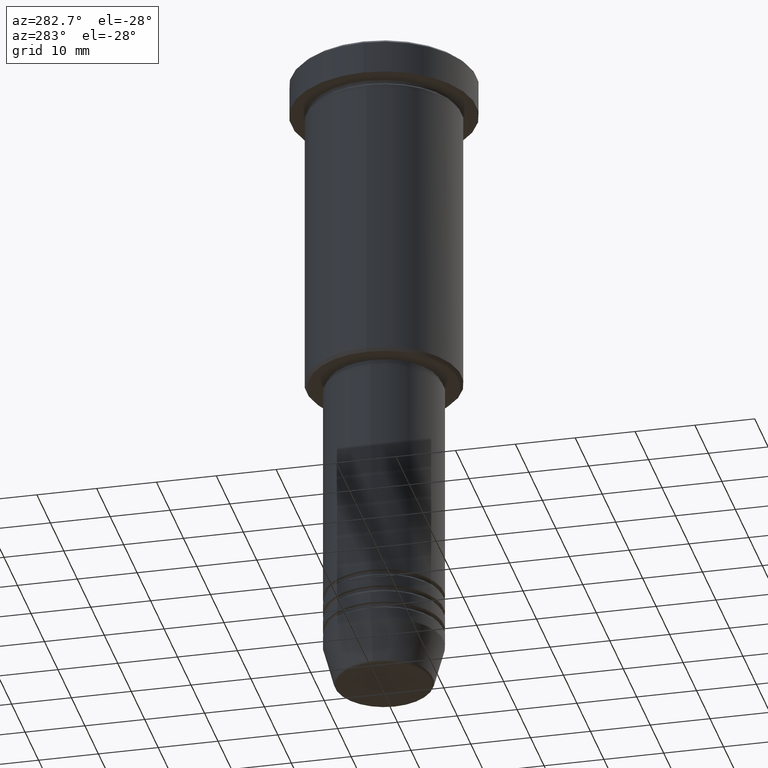
[diagram: clean part render]
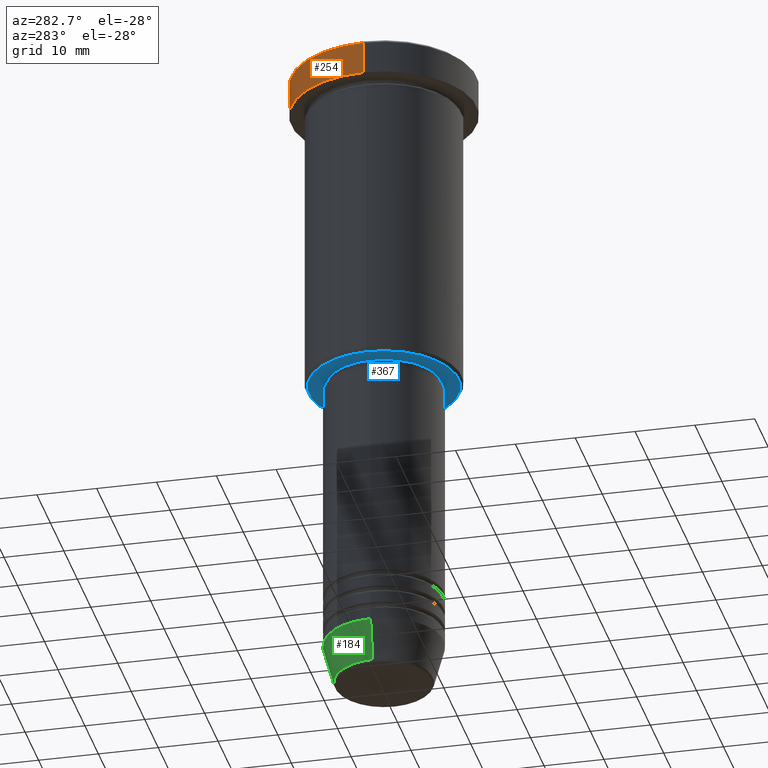
[diagram: same view with three faces highlighted in distinct colors, each labeled with its STEP entity id]
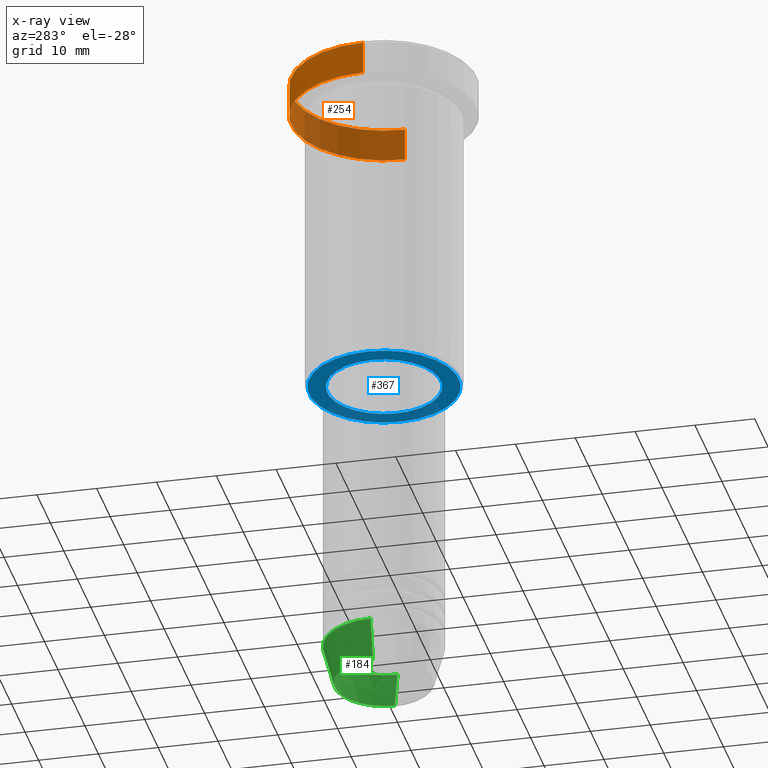
[diagram: x-ray of the same camera — body ghosted, the three highlighted faces saturated]
A machine part, auxiliary view with three faces highlighted in distinct colors.
The next image is the same camera in x-ray (body ghosted, the three faces saturated) — at least one of them is partly hidden behind the body in this view.
Their STEP definitions:

[orange] entity #254 — the highlighted cylindrical surface (partial cylindrical patch) has radius 15.5 mm, axis along (-0, -0, 1).
#17 = EDGE_LOOP ( 'NONE', ( #320, #1050, #904, #565 ) ) ;
#28 = AXIS2_PLACEMENT_3D ( 'NONE', #762, #479, #115 ) ;
#115 = DIRECTION ( 'NONE',  ( 1.000000000000000000, 0.000000000000000000, 0.000000000000000000 ) ) ;
#131 = CARTESIAN_POINT ( 'NONE',  ( 0.000000000000000000, 0.000000000000000000, -5.999999999999995559 ) ) ;
#138 = DIRECTION ( 'NONE',  ( -0.000000000000000000, -0.000000000000000000, 1.000000000000000000 ) ) ;
#197 = CYLINDRICAL_SURFACE ( 'NONE', #28, 15.50000000000000000 ) ;
#251 = CARTESIAN_POINT ( 'NONE',  ( 0.000000000000000000, 0.000000000000000000, -0.5000000000000125455 ) ) ;
#254 = ADVANCED_FACE ( 'NONE', ( #671 ), #197, .T. ) ;
#290 = CARTESIAN_POINT ( 'NONE',  ( 15.50000000000000000, 0.000000000000000000, -0.5000000000000125455 ) ) ;
#304 = LINE ( 'NONE', #1035, #394 ) ;
#320 = ORIENTED_EDGE ( 'NONE', *, *, #326, .T. ) ;
#326 = EDGE_CURVE ( 'NONE', #1136, #799, #984, .T. ) ;
#365 = CARTESIAN_POINT ( 'NONE',  ( 15.50000000000000000, 0.000000000000000000, -5.999999999999995559 ) ) ;
#394 = VECTOR ( 'NONE', #576, 1000.000000000000000 ) ;
#479 = DIRECTION ( 'NONE',  ( -0.000000000000000000, -0.000000000000000000, 1.000000000000000000 ) ) ;
#491 = CARTESIAN_POINT ( 'NONE',  ( -15.50000000000000000, 1.898202538678397557E-15, -5.999999999999995559 ) ) ;
#497 = CARTESIAN_POINT ( 'NONE',  ( -15.50000000000000000, 1.898202538678397557E-15, -0.5000000000000125455 ) ) ;
#502 = DIRECTION ( 'NONE',  ( 1.000000000000000000, 0.000000000000000000, 0.000000000000000000 ) ) ;
#509 = DIRECTION ( 'NONE',  ( 0.000000000000000000, 0.000000000000000000, -1.000000000000000000 ) ) ;
#540 = VERTEX_POINT ( 'NONE', #290 ) ;
#565 = ORIENTED_EDGE ( 'NONE', *, *, #973, .F. ) ;
#571 = VERTEX_POINT ( 'NONE', #497 ) ;
#576 = DIRECTION ( 'NONE',  ( -0.000000000000000000, -0.000000000000000000, 1.000000000000000000 ) ) ;
#631 = CARTESIAN_POINT ( 'NONE',  ( 15.50000000000000000, 0.000000000000000000, 0.000000000000000000 ) ) ;
#644 = AXIS2_PLACEMENT_3D ( 'NONE', #251, #509, #985 ) ;
#671 = FACE_OUTER_BOUND ( 'NONE', #17, .T. ) ;
#739 = EDGE_CURVE ( 'NONE', #571, #540, #1063, .T. ) ;
#762 = CARTESIAN_POINT ( 'NONE',  ( 0.000000000000000000, 0.000000000000000000, 0.000000000000000000 ) ) ;
#799 = VERTEX_POINT ( 'NONE', #491 ) ;
#904 = ORIENTED_EDGE ( 'NONE', *, *, #739, .T. ) ;
#924 = EDGE_CURVE ( 'NONE', #799, #571, #304, .T. ) ;
#947 = DIRECTION ( 'NONE',  ( -0.000000000000000000, -0.000000000000000000, 1.000000000000000000 ) ) ;
#968 = VECTOR ( 'NONE', #138, 1000.000000000000000 ) ;
#973 = EDGE_CURVE ( 'NONE', #1136, #540, #1083, .T. ) ;
#984 = CIRCLE ( 'NONE', #1135, 15.50000000000000000 ) ;
#985 = DIRECTION ( 'NONE',  ( 1.000000000000000000, 0.000000000000000000, 0.000000000000000000 ) ) ;
#1035 = CARTESIAN_POINT ( 'NONE',  ( -15.50000000000000000, 1.898202538678397557E-15, 0.000000000000000000 ) ) ;
#1050 = ORIENTED_EDGE ( 'NONE', *, *, #924, .T. ) ;
#1063 = CIRCLE ( 'NONE', #644, 15.50000000000000000 ) ;
#1083 = LINE ( 'NONE', #631, #968 ) ;
#1135 = AXIS2_PLACEMENT_3D ( 'NONE', #131, #947, #502 ) ;
#1136 = VERTEX_POINT ( 'NONE', #365 ) ;

[blue] entity #367 — the highlighted planar face has unit normal (0, 0, -1).
#1 = DIRECTION ( 'NONE',  ( -1.000000000000000000, 0.000000000000000000, 0.000000000000000000 ) ) ;
#29 = AXIS2_PLACEMENT_3D ( 'NONE', #1026, #195, #569 ) ;
#62 = ORIENTED_EDGE ( 'NONE', *, *, #765, .T. ) ;
#76 = CARTESIAN_POINT ( 'NONE',  ( 0.000000000000000000, 0.000000000000000000, -55.99999999999999289 ) ) ;
#101 = ORIENTED_EDGE ( 'NONE', *, *, #774, .T. ) ;
#102 = CARTESIAN_POINT ( 'NONE',  ( -12.49999999999998401, 1.561424668912874125E-15, -55.99999999999999289 ) ) ;
#108 = CARTESIAN_POINT ( 'NONE',  ( -9.500000000000000000, 1.163414459189985485E-15, -55.99999999999999289 ) ) ;
#110 = PLANE ( 'NONE',  #643 ) ;
#144 = EDGE_LOOP ( 'NONE', ( #407, #101 ) ) ;
#152 = CIRCLE ( 'NONE', #414, 12.49999999999998401 ) ;
#195 = DIRECTION ( 'NONE',  ( 0.000000000000000000, 0.000000000000000000, -1.000000000000000000 ) ) ;
#258 = CARTESIAN_POINT ( 'NONE',  ( 0.000000000000000000, 0.000000000000000000, -55.99999999999999289 ) ) ;
#270 = CIRCLE ( 'NONE', #1042, 9.500000000000000000 ) ;
#303 = DIRECTION ( 'NONE',  ( -1.000000000000000000, 0.000000000000000000, -0.000000000000000000 ) ) ;
#367 = ADVANCED_FACE ( 'NONE', ( #570, #943 ), #110, .T. ) ;
#395 = DIRECTION ( 'NONE',  ( 0.000000000000000000, 0.000000000000000000, -1.000000000000000000 ) ) ;
#407 = ORIENTED_EDGE ( 'NONE', *, *, #650, .T. ) ;
#414 = AXIS2_PLACEMENT_3D ( 'NONE', #543, #823, #1 ) ;
#448 = CARTESIAN_POINT ( 'NONE',  ( 9.500000000000000000, 0.000000000000000000, -55.99999999999999289 ) ) ;
#492 = EDGE_CURVE ( 'NONE', #1036, #808, #270, .T. ) ;
#541 = CIRCLE ( 'NONE', #29, 12.49999999999998401 ) ;
#543 = CARTESIAN_POINT ( 'NONE',  ( 0.000000000000000000, 0.000000000000000000, -55.99999999999999289 ) ) ;
#569 = DIRECTION ( 'NONE',  ( -1.000000000000000000, 0.000000000000000000, 0.000000000000000000 ) ) ;
#570 = FACE_OUTER_BOUND ( 'NONE', #144, .T. ) ;
#572 = EDGE_LOOP ( 'NONE', ( #840, #62 ) ) ;
#602 = AXIS2_PLACEMENT_3D ( 'NONE', #76, #628, #1110 ) ;
#609 = CARTESIAN_POINT ( 'NONE',  ( 12.49999999999998401, 0.000000000000000000, -55.99999999999999289 ) ) ;
#628 = DIRECTION ( 'NONE',  ( -0.000000000000000000, -0.000000000000000000, 1.000000000000000000 ) ) ;
#630 = DIRECTION ( 'NONE',  ( 1.000000000000000000, 0.000000000000000000, 0.000000000000000000 ) ) ;
#643 = AXIS2_PLACEMENT_3D ( 'NONE', #844, #395, #303 ) ;
#650 = EDGE_CURVE ( 'NONE', #705, #1057, #541, .T. ) ;
#660 = CIRCLE ( 'NONE', #602, 9.500000000000000000 ) ;
#705 = VERTEX_POINT ( 'NONE', #609 ) ;
#765 = EDGE_CURVE ( 'NONE', #808, #1036, #660, .T. ) ;
#774 = EDGE_CURVE ( 'NONE', #1057, #705, #152, .T. ) ;
#808 = VERTEX_POINT ( 'NONE', #108 ) ;
#823 = DIRECTION ( 'NONE',  ( 0.000000000000000000, 0.000000000000000000, -1.000000000000000000 ) ) ;
#840 = ORIENTED_EDGE ( 'NONE', *, *, #492, .T. ) ;
#844 = CARTESIAN_POINT ( 'NONE',  ( 0.000000000000000000, 13.00000000000000000, -55.99999999999999289 ) ) ;
#943 = FACE_BOUND ( 'NONE', #572, .T. ) ;
#1026 = CARTESIAN_POINT ( 'NONE',  ( 0.000000000000000000, 0.000000000000000000, -55.99999999999999289 ) ) ;
#1036 = VERTEX_POINT ( 'NONE', #448 ) ;
#1042 = AXIS2_PLACEMENT_3D ( 'NONE', #258, #1106, #630 ) ;
#1057 = VERTEX_POINT ( 'NONE', #102 ) ;
#1106 = DIRECTION ( 'NONE',  ( -0.000000000000000000, -0.000000000000000000, 1.000000000000000000 ) ) ;
#1110 = DIRECTION ( 'NONE',  ( 1.000000000000000000, 0.000000000000000000, 0.000000000000000000 ) ) ;

[green] entity #184 — the highlighted conical surface has half-angle 15 deg.
#6 = DIRECTION ( 'NONE',  ( 0.2588190451025213501, 0.000000000000000000, 0.9659258262890680902 ) ) ;
#12 = CARTESIAN_POINT ( 'NONE',  ( 0.000000000000000000, 0.000000000000000000, -104.0000000000000142 ) ) ;
#61 = EDGE_CURVE ( 'NONE', #750, #1144, #342, .T. ) ;
#87 = CARTESIAN_POINT ( 'NONE',  ( -10.00000000000000000, 1.224646799147353256E-15, -104.0000000000000142 ) ) ;
#96 = AXIS2_PLACEMENT_3D ( 'NONE', #1159, #344, #711 ) ;
#157 = DIRECTION ( 'NONE',  ( -0.2588190451025213501, 3.169619151431772337E-17, 0.9659258262890680902 ) ) ;
#160 = ORIENTED_EDGE ( 'NONE', *, *, #467, .F. ) ;
#170 = CIRCLE ( 'NONE', #986, 10.00000000000000000 ) ;
#173 = CARTESIAN_POINT ( 'NONE',  ( 10.00000000000000000, 0.000000000000000000, -104.0000000000000142 ) ) ;
#184 = ADVANCED_FACE ( 'NONE', ( #735 ), #522, .T. ) ;
#186 = CARTESIAN_POINT ( 'NONE',  ( 0.000000000000000000, 0.000000000000000000, -104.0000000000000142 ) ) ;
#237 = EDGE_LOOP ( 'NONE', ( #687, #763, #160, #480 ) ) ;
#271 = DIRECTION ( 'NONE',  ( -0.000000000000000000, -0.000000000000000000, 1.000000000000000000 ) ) ;
#296 = VERTEX_POINT ( 'NONE', #1049 ) ;
#335 = CIRCLE ( 'NONE', #96, 8.223655072137191269 ) ;
#342 = LINE ( 'NONE', #1071, #1169 ) ;
#344 = DIRECTION ( 'NONE',  ( -0.000000000000000000, -0.000000000000000000, 1.000000000000000000 ) ) ;
#428 = EDGE_CURVE ( 'NONE', #724, #750, #335, .T. ) ;
#467 = EDGE_CURVE ( 'NONE', #296, #1144, #170, .T. ) ;
#480 = ORIENTED_EDGE ( 'NONE', *, *, #1146, .F. ) ;
#522 = CONICAL_SURFACE ( 'NONE', #811, 10.00000000000000000, 0.2617993877991500740 ) ;
#527 = VECTOR ( 'NONE', #6, 1000.000000000000000 ) ;
#567 = LINE ( 'NONE', #173, #527 ) ;
#646 = DIRECTION ( 'NONE',  ( 1.000000000000000000, 0.000000000000000000, 0.000000000000000000 ) ) ;
#687 = ORIENTED_EDGE ( 'NONE', *, *, #428, .T. ) ;
#711 = DIRECTION ( 'NONE',  ( 1.000000000000000000, 0.000000000000000000, 0.000000000000000000 ) ) ;
#724 = VERTEX_POINT ( 'NONE', #966 ) ;
#735 = FACE_OUTER_BOUND ( 'NONE', #237, .T. ) ;
#750 = VERTEX_POINT ( 'NONE', #1148 ) ;
#763 = ORIENTED_EDGE ( 'NONE', *, *, #61, .T. ) ;
#811 = AXIS2_PLACEMENT_3D ( 'NONE', #12, #917, #1179 ) ;
#917 = DIRECTION ( 'NONE',  ( -0.000000000000000000, -0.000000000000000000, 1.000000000000000000 ) ) ;
#966 = CARTESIAN_POINT ( 'NONE',  ( 8.223655072137191269, 0.000000000000000000, -110.6294095225512706 ) ) ;
#986 = AXIS2_PLACEMENT_3D ( 'NONE', #186, #271, #646 ) ;
#1049 = CARTESIAN_POINT ( 'NONE',  ( 10.00000000000000000, 0.000000000000000000, -104.0000000000000142 ) ) ;
#1071 = CARTESIAN_POINT ( 'NONE',  ( -10.00000000000000000, 1.224646799147353256E-15, -104.0000000000000142 ) ) ;
#1144 = VERTEX_POINT ( 'NONE', #87 ) ;
#1146 = EDGE_CURVE ( 'NONE', #724, #296, #567, .T. ) ;
#1148 = CARTESIAN_POINT ( 'NONE',  ( -8.223655072137191269, 1.115877042642912054E-15, -110.6294095225512706 ) ) ;
#1159 = CARTESIAN_POINT ( 'NONE',  ( 0.000000000000000000, 0.000000000000000000, -110.6294095225512706 ) ) ;
#1169 = VECTOR ( 'NONE', #157, 1000.000000000000000 ) ;
#1179 = DIRECTION ( 'NONE',  ( 1.000000000000000000, 0.000000000000000000, 0.000000000000000000 ) ) ;